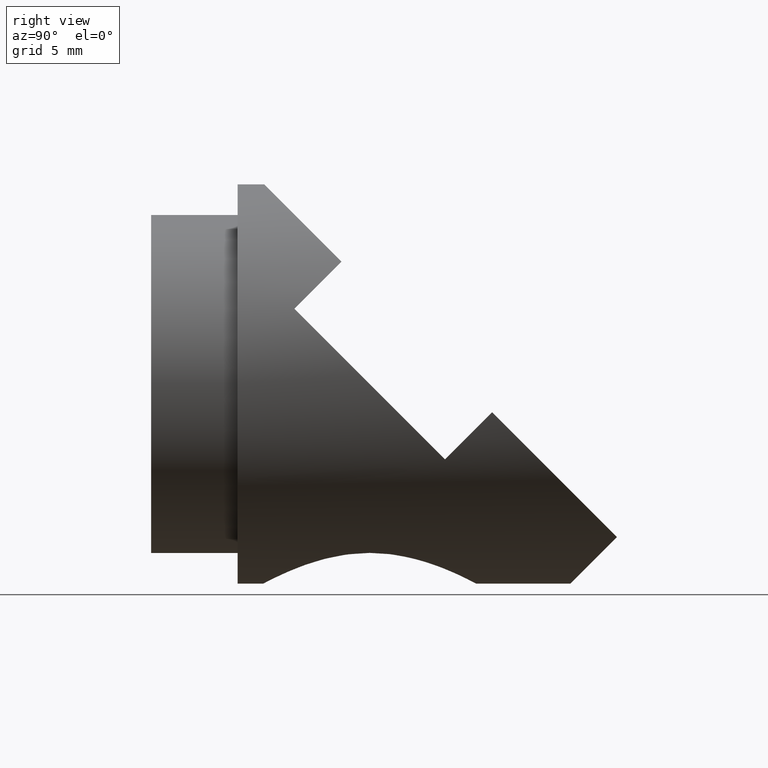
[diagram: clean part render]
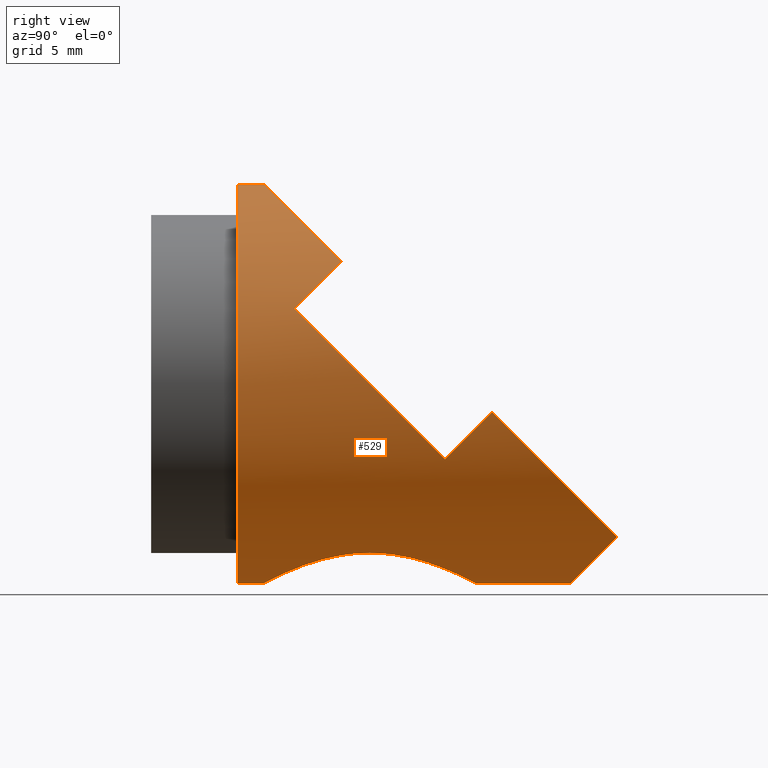
[diagram: same view with one face highlighted and labeled with its STEP entity id]
A machine part, right view. The second image highlights one B-rep face of the part: STEP entity #529.
In plain terms, the highlighted cylindrical surface (partial cylindrical patch) has radius 15 mm, axis along (-0, -1, -0).
Its self-contained STEP definition (entity closure, byte-faithful):
#1 = CARTESIAN_POINT ( 'NONE',  ( 8.000000000000108400, 9.397862121657148300, -12.68857754044945500 ) ) ;
#7 = EDGE_LOOP ( 'NONE', ( #872, #875, #98, #970, #746, #759, #428, #349, #93, #590, #254, #859 ) ) ;
#9 = CARTESIAN_POINT ( 'NONE',  ( 1.333841282881538200, 2.036462308175945400, -14.94285998935058600 ) ) ;
#16 = DIRECTION ( 'NONE',  ( 0.0000000000000000000, 0.0000000000000000000, -1.000000000000000000 ) ) ;
#41 = CARTESIAN_POINT ( 'NONE',  ( 6.022384411575362000, 15.21982924088024800, -13.74350274341440500 ) ) ;
#43 = CARTESIAN_POINT ( 'NONE',  ( 0.5381882108044320200, 17.91531463801836600, -14.99272429348970400 ) ) ;
#47 = CARTESIAN_POINT ( 'NONE',  ( 4.036905358080996800, 16.84063243351785400, -14.44852192399202900 ) ) ;
#55 = CARTESIAN_POINT ( 'NONE',  ( 7.735155474324052700, 12.03803811695318300, -12.85233958674314200 ) ) ;
#57 = CARTESIAN_POINT ( 'NONE',  ( 1.836970198721029600E-015, 0.0000000000000000000, 15.00000000000000000 ) ) ;
#64 = CARTESIAN_POINT ( 'NONE',  ( 13.89244398944984700, 15.58578643762660000, -5.656854249492376100 ) ) ;
#68 = CARTESIAN_POINT ( 'NONE',  ( 2.109043792591567300, 2.207430890522653400, -14.85318587089761300 ) ) ;
#72 = CARTESIAN_POINT ( 'NONE',  ( 12.50011912809286900, 26.09698703815875100, -9.096987038158998100 ) ) ;
#74 = CARTESIAN_POINT ( 'NONE',  ( 8.000000000000104800, 9.928932188134220700, -12.68857754044945500 ) ) ;
#78 = CARTESIAN_POINT ( 'NONE',  ( 1.070372010973882100, 1.996305274463149500, -14.96415875978184900 ) ) ;
#84 = LINE ( 'NONE', #991, #812 ) ;
#90 = VERTEX_POINT ( 'NONE', #436 ) ;
#93 = ORIENTED_EDGE ( 'NONE', *, *, #268, .F. ) ;
#96 =( BOUNDED_CURVE ( )  B_SPLINE_CURVE ( 3, ( #884, #570, #641, #482 ),
 .UNSPECIFIED., .F., .F. ) 
 B_SPLINE_CURVE_WITH_KNOTS ( ( 4, 4 ),
 ( 4.052757254100441700, 4.325700354228873200 ),
 .UNSPECIFIED. ) 
 CURVE ( )  GEOMETRIC_REPRESENTATION_ITEM ( )  RATIONAL_B_SPLINE_CURVE ( ( 1.000000000000000000, 0.9938014680113469400, 0.9938014680113469400, 1.000000000000000000 ) ) 
 REPRESENTATION_ITEM ( '' )  );
#98 = ORIENTED_EDGE ( 'NONE', *, *, #817, .F. ) ;
#109 = VERTEX_POINT ( 'NONE', #669 ) ;
#111 = CARTESIAN_POINT ( 'NONE',  ( 2.122809676162935600, 17.66057405503523700, -14.85833251213402100 ) ) ;
#149 = CARTESIAN_POINT ( 'NONE',  ( 5.308496711202797900, 3.922069356659853700, -14.03468217593874800 ) ) ;
#161 = CARTESIAN_POINT ( 'NONE',  ( 14.67571503868612700, 17.90662877993972300, -3.336011907179273100 ) ) ;
#180 = CARTESIAN_POINT ( 'NONE',  ( 8.000000000000104800, 9.928932188134220700, -12.68857754044945500 ) ) ;
#186 = VECTOR ( 'NONE', #939, 1000.000000000000000 ) ;
#187 = VERTEX_POINT ( 'NONE', #920 ) ;
#193 = VERTEX_POINT ( 'NONE', #979 ) ;
#203 = CARTESIAN_POINT ( 'NONE',  ( 8.000000000000104800, 9.928932188134220700, -12.68857754044945500 ) ) ;
#216 = DIRECTION ( 'NONE',  ( 0.0000000000000000000, 0.0000000000000000000, -1.000000000000000000 ) ) ;
#234 = CARTESIAN_POINT ( 'NONE',  ( 6.923251542663694900, 5.912021662742544600, -13.30743652911257900 ) ) ;
#237 = CARTESIAN_POINT ( 'NONE',  ( 13.89244398944976300, 4.272077938641865000, 5.656854249492601700 ) ) ;
#254 = ORIENTED_EDGE ( 'NONE', *, *, #753, .F. ) ;
#264 = CARTESIAN_POINT ( 'NONE',  ( 7.173765157069913900, 13.50849064525938600, -13.17541689499790900 ) ) ;
#268 = EDGE_CURVE ( 'NONE', #187, #109, #338, .T. ) ;
#274 = CARTESIAN_POINT ( 'NONE',  ( 8.000000000000104800, 10.19397254341920500, -12.68857754044945600 ) ) ;
#282 = B_SPLINE_CURVE_WITH_KNOTS ( 'NONE', 3,
 ( #203, #274, #439, #857, #514, #55, #978, #264, #381, #665, #41, #975, #435, #431, #47, #591, #673, #980, #111, #511, #985, #43, #593, #517 ),
 .UNSPECIFIED., .F., .F.,
 ( 4, 2, 2, 2, 2, 2, 2, 2, 2, 2, 2, 4 ),
 ( 0.03825841630287567200, 0.03905330695658034600, 0.03984819761028501900, 0.04143797891769435800, 0.04302776022510370500, 0.04461754153251304400, 0.04620732283992238400, 0.04700221349362705700, 0.04779710414733172300, 0.04938688545474105600, 0.05018177610844572200, 0.05097666676215038800 ),
 .UNSPECIFIED. ) ;
#286 = DIRECTION ( 'NONE',  ( -0.0000000000000000000, -1.000000000000000000, -0.0000000000000000000 ) ) ;
#287 = CARTESIAN_POINT ( 'NONE',  ( 0.0000000000000000000, -7.664944013781219000, 0.0000000000000000000 ) ) ;
#292 = CARTESIAN_POINT ( 'NONE',  ( 1.836970198721029600E-015, 2.000000000000001800, 15.00000000000000000 ) ) ;
#293 = CARTESIAN_POINT ( 'NONE',  ( 1.836970198721029600E-015, -7.664944013781219000, 15.00000000000000000 ) ) ;
#302 = CARTESIAN_POINT ( 'NONE',  ( 14.31993811834983700, 22.82645034953315400, -5.826450349533367900 ) ) ;
#308 = CARTESIAN_POINT ( 'NONE',  ( 6.902635156328075000, 26.21539750681844100, -13.78460249318158400 ) ) ;
#329 = AXIS2_PLACEMENT_3D ( 'NONE', #694, #286, #216 ) ;
#338 =( BOUNDED_CURVE ( )  B_SPLINE_CURVE ( 3, ( #627, #302, #72, #776 ),
 .UNSPECIFIED., .F., .F. ) 
 B_SPLINE_CURVE_WITH_KNOTS ( ( 4, 4 ),
 ( 1.712693381399056600, 2.444429519947575200 ),
 .UNSPECIFIED. ) 
 CURVE ( )  GEOMETRIC_REPRESENTATION_ITEM ( )  RATIONAL_B_SPLINE_CURVE ( ( 1.000000000000000000, 0.9558757016912032800, 0.9558757016912032800, 1.000000000000000000 ) ) 
 REPRESENTATION_ITEM ( '' )  );
#345 = VERTEX_POINT ( 'NONE', #578 ) ;
#349 = ORIENTED_EDGE ( 'NONE', *, *, #481, .F. ) ;
#355 = VERTEX_POINT ( 'NONE', #180 ) ;
#366 = VERTEX_POINT ( 'NONE', #651 ) ;
#380 = CARTESIAN_POINT ( 'NONE',  ( 7.579703556686396800, 7.318091653432770900, -12.94607581582513600 ) ) ;
#381 = CARTESIAN_POINT ( 'NONE',  ( 6.926585024037167100, 13.96460827585152000, -13.30881951712086300 ) ) ;
#383 = CARTESIAN_POINT ( 'NONE',  ( 0.0000000000000000000, 25.00000000000000700, -15.00000000000000000 ) ) ;
#396 = CARTESIAN_POINT ( 'NONE',  ( 0.5354399636913802500, 1.942345305199992800, -14.99283321040804200 ) ) ;
#397 = CARTESIAN_POINT ( 'NONE',  ( 9.630680142128964500, 28.49999999999988300, -11.50000000000015800 ) ) ;
#405 = CARTESIAN_POINT ( 'NONE',  ( 15.38829925571959500, 7.945689558534898100, 1.983242629599491200 ) ) ;
#428 = ORIENTED_EDGE ( 'NONE', *, *, #640, .F. ) ;
#431 = CARTESIAN_POINT ( 'NONE',  ( 4.261130567397324300, 16.70459119422488600, -14.38378035884020000 ) ) ;
#435 = CARTESIAN_POINT ( 'NONE',  ( 4.903769958020981300, 16.27087155363648900, -14.18289549753049200 ) ) ;
#436 = CARTESIAN_POINT ( 'NONE',  ( 13.89244398944976300, 4.272077938641865000, 5.656854249492601700 ) ) ;
#439 = CARTESIAN_POINT ( 'NONE',  ( 7.986863270956809500, 10.45973426219453200, -12.69688965641565100 ) ) ;
#454 = CARTESIAN_POINT ( 'NONE',  ( 11.85326959112958900, 7.807611844574621400, 9.192388155425320000 ) ) ;
#458 = LINE ( 'NONE', #293, #186 ) ;
#462 = CARTESIAN_POINT ( 'NONE',  ( 7.947652023449896000, 8.869674906142993400, -12.72204117017705700 ) ) ;
#477 = CARTESIAN_POINT ( 'NONE',  ( 14.35518363273350100, 16.72221037440977700, -4.520430312709208900 ) ) ;
#481 = EDGE_CURVE ( 'NONE', #109, #345, #844, .T. ) ;
#482 = CARTESIAN_POINT ( 'NONE',  ( 13.89244398944976300, 4.272077938641865000, 5.656854249492601700 ) ) ;
#504 = VECTOR ( 'NONE', #623, 1000.000000000000000 ) ;
#511 = CARTESIAN_POINT ( 'NONE',  ( 1.338751307150177800, 17.82063014595114900, -14.94245081732548600 ) ) ;
#514 = CARTESIAN_POINT ( 'NONE',  ( 7.893140334162589900, 11.25881006709646400, -12.75547535105799900 ) ) ;
#517 = CARTESIAN_POINT ( 'NONE',  ( 1.312247599340864500E-016, 17.92893218813432600, -15.00000000000000000 ) ) ;
#529 = ADVANCED_FACE ( 'NONE', ( #841 ), #855, .T. ) ;
#533 = CARTESIAN_POINT ( 'NONE',  ( -2.763774181441814900E-024, 1.928932188134118200, -15.00000000000000000 ) ) ;
#544 = CARTESIAN_POINT ( 'NONE',  ( -2.763774181441814900E-024, 1.928932188134118200, -15.00000000000000000 ) ) ;
#552 = CARTESIAN_POINT ( 'NONE',  ( 7.279670626786716200, 6.601246184058548600, -13.11562395864500800 ) ) ;
#558 = CARTESIAN_POINT ( 'NONE',  ( 2.613348245178229100, 2.363216164021895200, -14.77279957164266100 ) ) ;
#563 = CARTESIAN_POINT ( 'NONE',  ( 14.84924240491755600, 19.12132034355941500, -2.121320343559593500 ) ) ;
#570 = CARTESIAN_POINT ( 'NONE',  ( 12.69220912968831700, 6.725828052043387300, 8.110604362894099100 ) ) ;
#573 = VERTEX_POINT ( 'NONE', #292 ) ;
#578 = CARTESIAN_POINT ( 'NONE',  ( 0.0000000000000000000, 25.00000000000000700, -15.00000000000000000 ) ) ;
#589 = EDGE_CURVE ( 'NONE', #355, #193, #282, .T. ) ;
#590 = ORIENTED_EDGE ( 'NONE', *, *, #749, .F. ) ;
#591 = CARTESIAN_POINT ( 'NONE',  ( 3.577523703587491600, 17.08920657550296700, -14.56906705346815100 ) ) ;
#593 = CARTESIAN_POINT ( 'NONE',  ( 0.2691057794473215000, 17.92893218813432600, -15.00000000000000000 ) ) ;
#595 = EDGE_CURVE ( 'NONE', #792, #366, #84, .T. ) ;
#619 = DIRECTION ( 'NONE',  ( -0.0000000000000000000, -1.000000000000000000, -0.0000000000000000000 ) ) ;
#620 = DIRECTION ( 'NONE',  ( -0.0000000000000000000, -1.000000000000000000, -0.0000000000000000000 ) ) ;
#623 = DIRECTION ( 'NONE',  ( -0.0000000000000000000, -1.000000000000000000, -0.0000000000000000000 ) ) ;
#627 = CARTESIAN_POINT ( 'NONE',  ( 14.84924240491755600, 19.12132034355941500, -2.121320343559593500 ) ) ;
#629 = CARTESIAN_POINT ( 'NONE',  ( 3.558319546696749200, 25.00000000000000700, -15.00000000000000200 ) ) ;
#640 = EDGE_CURVE ( 'NONE', #345, #193, #697, .T. ) ;
#641 = CARTESIAN_POINT ( 'NONE',  ( 13.37617350418277000, 5.539966147113979400, 6.924742457964701900 ) ) ;
#648 =( BOUNDED_CURVE ( )  B_SPLINE_CURVE ( 3, ( #999, #685, #837, #695 ),
 .UNSPECIFIED., .F., .T. ) 
 B_SPLINE_CURVE_WITH_KNOTS ( ( 4, 4 ),
 ( 1.224646799147353000E-016, 0.9111646005106482900 ),
 .UNSPECIFIED. ) 
 CURVE ( )  GEOMETRIC_REPRESENTATION_ITEM ( )  RATIONAL_B_SPLINE_CURVE ( ( 1.000000000000000000, 0.9320033179247985100, 0.9320033179247985100, 1.000000000000000000 ) ) 
 REPRESENTATION_ITEM ( '' )  );
#651 = CARTESIAN_POINT ( 'NONE',  ( 0.0000000000000000000, 0.0000000000000000000, -15.00000000000000000 ) ) ;
#665 = CARTESIAN_POINT ( 'NONE',  ( 6.353103296883922700, 14.81793413938273900, -13.59192170127667300 ) ) ;
#669 = CARTESIAN_POINT ( 'NONE',  ( 9.630680142128964500, 28.49999999999988300, -11.50000000000015800 ) ) ;
#673 = CARTESIAN_POINT ( 'NONE',  ( 3.342744039525551400, 17.20174540469241700, -14.62484849141227800 ) ) ;
#674 =( BOUNDED_CURVE ( )  B_SPLINE_CURVE ( 3, ( #799, #477, #161, #563 ),
 .UNSPECIFIED., .F., .F. ) 
 B_SPLINE_CURVE_WITH_KNOTS ( ( 4, 4 ),
 ( 1.184107700639096800, 1.428899272190736500 ),
 .UNSPECIFIED. ) 
 CURVE ( )  GEOMETRIC_REPRESENTATION_ITEM ( )  RATIONAL_B_SPLINE_CURVE ( ( 1.000000000000000000, 0.9950126547132646100, 0.9950126547132646100, 1.000000000000000000 ) ) 
 REPRESENTATION_ITEM ( '' )  );
#685 = CARTESIAN_POINT ( 'NONE',  ( 4.720855478036206400, 2.000000000000002200, 15.00000000000000000 ) ) ;
#694 = CARTESIAN_POINT ( 'NONE',  ( 0.0000000000000000000, 0.0000000000000000000, 0.0000000000000000000 ) ) ;
#695 = CARTESIAN_POINT ( 'NONE',  ( 11.85326959112958900, 7.807611844574621400, 9.192388155425320000 ) ) ;
#697 = LINE ( 'NONE', #881, #504 ) ;
#701 = CARTESIAN_POINT ( 'NONE',  ( 3.592990458993716700, 2.761682368169339400, -14.57182277508525000 ) ) ;
#714 = CARTESIAN_POINT ( 'NONE',  ( 6.356143963390639600, 5.043512989774846700, -13.59054130451619200 ) ) ;
#720 = EDGE_CURVE ( 'NONE', #769, #90, #96, .T. ) ;
#730 = CIRCLE ( 'NONE', #329, 15.00000000000000000 ) ;
#731 = VERTEX_POINT ( 'NONE', #940 ) ;
#746 = ORIENTED_EDGE ( 'NONE', *, *, #821, .T. ) ;
#749 = EDGE_CURVE ( 'NONE', #731, #187, #674, .T. ) ;
#752 = B_SPLINE_CURVE_WITH_KNOTS ( 'NONE', 3,
 ( #544, #773, #396, #78, #9, #871, #68, #558, #851, #701, #949, #943, #149, #932, #714, #863, #234, #856, #552, #380, #937, #462, #1, #74 ),
 .UNSPECIFIED., .F., .F.,
 ( 4, 2, 2, 2, 2, 2, 2, 2, 2, 2, 2, 4 ),
 ( 0.02551642818258203000, 0.02631280244010038300, 0.02710917669761873900, 0.02790555095513709200, 0.02870192521265544800, 0.03029467372769215400, 0.03188742224272886300, 0.03348017075776556900, 0.03427654501528391900, 0.03507291927280227500, 0.03666566778783897400, 0.03825841630287567200 ),
 .UNSPECIFIED. ) ;
#753 = EDGE_CURVE ( 'NONE', #90, #731, #941, .T. ) ;
#759 = ORIENTED_EDGE ( 'NONE', *, *, #589, .T. ) ;
#769 = VERTEX_POINT ( 'NONE', #454 ) ;
#773 = CARTESIAN_POINT ( 'NONE',  ( 0.2663809960376444800, 1.928932188134117500, -15.00000000000000400 ) ) ;
#776 = CARTESIAN_POINT ( 'NONE',  ( 9.630680142128964500, 28.49999999999988300, -11.50000000000015800 ) ) ;
#792 = VERTEX_POINT ( 'NONE', #533 ) ;
#799 = CARTESIAN_POINT ( 'NONE',  ( 13.89244398944984700, 15.58578643762660000, -5.656854249492376100 ) ) ;
#812 = VECTOR ( 'NONE', #619, 1000.000000000000000 ) ;
#817 = EDGE_CURVE ( 'NONE', #366, #915, #730, .T. ) ;
#821 = EDGE_CURVE ( 'NONE', #792, #355, #752, .T. ) ;
#837 = CARTESIAN_POINT ( 'NONE',  ( 8.960207192477913200, 4.077106999113083500, 12.92289300088689600 ) ) ;
#841 = FACE_OUTER_BOUND ( 'NONE', #7, .T. ) ;
#844 =( BOUNDED_CURVE ( )  B_SPLINE_CURVE ( 3, ( #397, #308, #629, #383 ),
 .UNSPECIFIED., .F., .F. ) 
 B_SPLINE_CURVE_WITH_KNOTS ( ( 4, 4 ),
 ( 5.586022173537368300, 6.283185307179586200 ),
 .UNSPECIFIED. ) 
 CURVE ( )  GEOMETRIC_REPRESENTATION_ITEM ( )  RATIONAL_B_SPLINE_CURVE ( ( 1.000000000000000000, 0.9599054302165208600, 0.9599054302165208600, 1.000000000000000000 ) ) 
 REPRESENTATION_ITEM ( '' )  );
#851 = CARTESIAN_POINT ( 'NONE',  ( 2.862778570636199700, 2.454023395342202400, -14.72638444127527700 ) ) ;
#855 = CYLINDRICAL_SURFACE ( 'NONE', #962, 15.00000000000000000 ) ;
#856 = CARTESIAN_POINT ( 'NONE',  ( 7.168406417719343600, 6.367902628807623700, -13.17699618007666900 ) ) ;
#857 = CARTESIAN_POINT ( 'NONE',  ( 7.933476737948514500, 10.99273790311013600, -12.73031573467772900 ) ) ;
#859 = ORIENTED_EDGE ( 'NONE', *, *, #720, .F. ) ;
#863 = CARTESIAN_POINT ( 'NONE',  ( 6.788536056567907400, 5.688324930271245500, -13.37690633020036300 ) ) ;
#871 = CARTESIAN_POINT ( 'NONE',  ( 1.853177701069957900, 2.142023572886144800, -14.88737484036426100 ) ) ;
#872 = ORIENTED_EDGE ( 'NONE', *, *, #924, .F. ) ;
#875 = ORIENTED_EDGE ( 'NONE', *, *, #879, .T. ) ;
#877 = CARTESIAN_POINT ( 'NONE',  ( 15.38829925571962700, 11.91217481773354700, -1.983242629599243600 ) ) ;
#879 = EDGE_CURVE ( 'NONE', #573, #915, #458, .T. ) ;
#881 = CARTESIAN_POINT ( 'NONE',  ( 0.0000000000000000000, -7.664944013781219000, -15.00000000000000000 ) ) ;
#884 = CARTESIAN_POINT ( 'NONE',  ( 11.85326959112958900, 7.807611844574621400, 9.192388155425320000 ) ) ;
#915 = VERTEX_POINT ( 'NONE', #57 ) ;
#920 = CARTESIAN_POINT ( 'NONE',  ( 14.84924240491755600, 19.12132034355941500, -2.121320343559593500 ) ) ;
#924 = EDGE_CURVE ( 'NONE', #573, #769, #648, .T. ) ;
#932 = CARTESIAN_POINT ( 'NONE',  ( 6.031435099996727400, 4.648370755528155500, -13.73951351929867400 ) ) ;
#937 = CARTESIAN_POINT ( 'NONE',  ( 7.735358406961998100, 7.819091200964576800, -12.85222683185173200 ) ) ;
#939 = DIRECTION ( 'NONE',  ( -0.0000000000000000000, -1.000000000000000000, -0.0000000000000000000 ) ) ;
#940 = CARTESIAN_POINT ( 'NONE',  ( 13.89244398944984700, 15.58578643762660000, -5.656854249492376100 ) ) ;
#941 =( BOUNDED_CURVE ( )  B_SPLINE_CURVE ( 3, ( #237, #405, #877, #64 ),
 .UNSPECIFIED., .F., .F. ) 
 B_SPLINE_CURVE_WITH_KNOTS ( ( 4, 4 ),
 ( 1.184107700639080800, 1.957484952950696400 ),
 .UNSPECIFIED. ) 
 CURVE ( )  GEOMETRIC_REPRESENTATION_ITEM ( )  RATIONAL_B_SPLINE_CURVE ( ( 1.000000000000000000, 0.9507752884199895900, 0.9507752884199895900, 1.000000000000000000 ) ) 
 REPRESENTATION_ITEM ( '' )  );
#943 = CARTESIAN_POINT ( 'NONE',  ( 4.906127240118980400, 3.588799818758777100, -14.18208317508983300 ) ) ;
#949 = CARTESIAN_POINT ( 'NONE',  ( 4.049140723086007500, 3.009985565845082300, -14.45012204398461900 ) ) ;
#962 = AXIS2_PLACEMENT_3D ( 'NONE', #287, #620, #16 ) ;
#970 = ORIENTED_EDGE ( 'NONE', *, *, #595, .F. ) ;
#975 = CARTESIAN_POINT ( 'NONE',  ( 5.297957056161502400, 15.94510677458124300, -14.03868343863104700 ) ) ;
#978 = CARTESIAN_POINT ( 'NONE',  ( 7.580364738516723700, 12.53933746468015500, -12.94575557149288000 ) ) ;
#979 = CARTESIAN_POINT ( 'NONE',  ( 1.312247599340864500E-016, 17.92893218813432600, -15.00000000000000000 ) ) ;
#980 = CARTESIAN_POINT ( 'NONE',  ( 2.623005645509738100, 17.50460645320975000, -14.77702154785646400 ) ) ;
#985 = CARTESIAN_POINT ( 'NONE',  ( 1.071939227149835800, 17.86132763209461800, -14.96403603925567100 ) ) ;
#991 = CARTESIAN_POINT ( 'NONE',  ( 0.0000000000000000000, -7.664944013781219000, -15.00000000000000000 ) ) ;
#999 = CARTESIAN_POINT ( 'NONE',  ( 1.836970198721029600E-015, 2.000000000000001800, 15.00000000000000000 ) ) ;